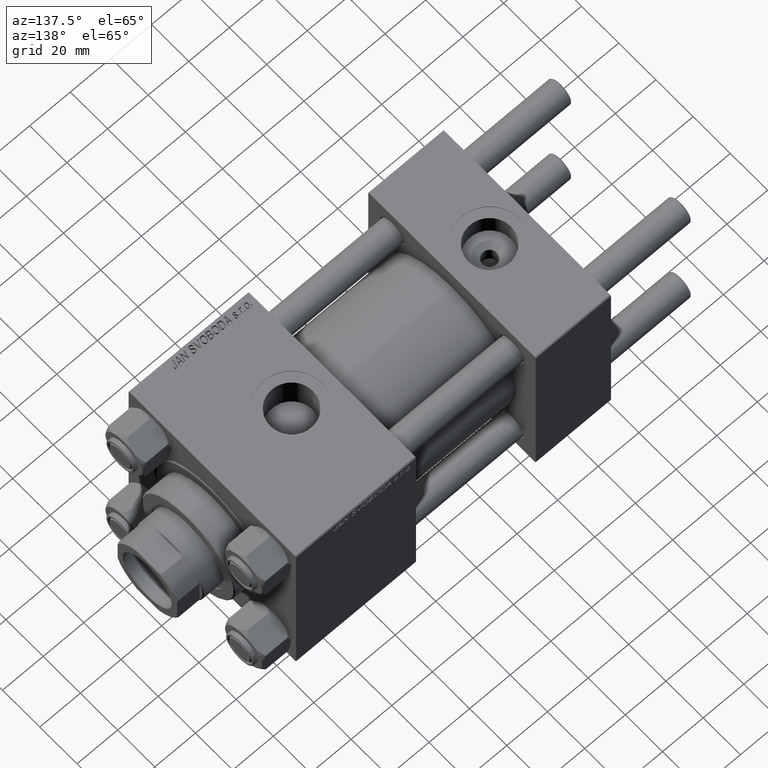
[diagram: clean part render]
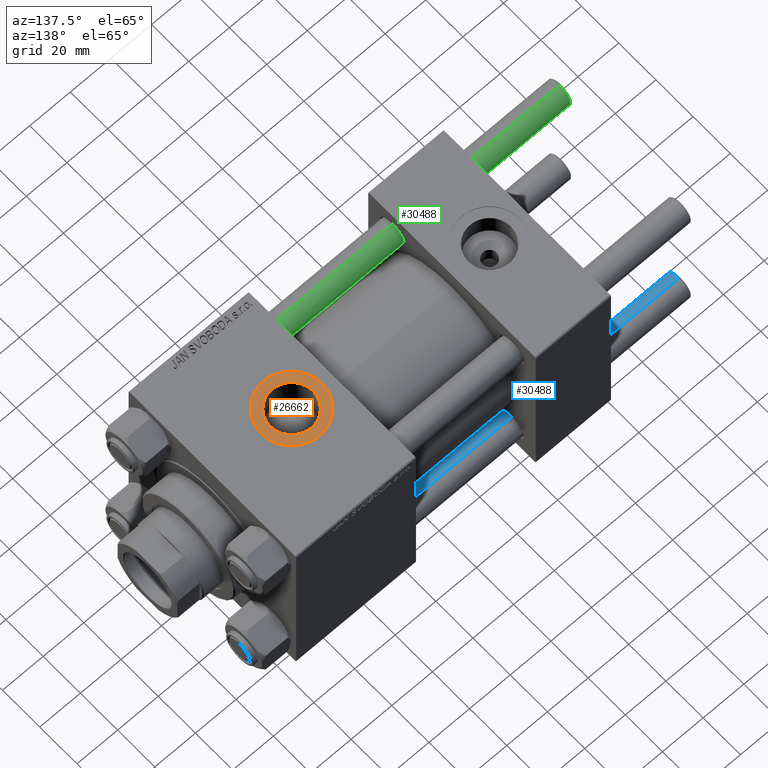
[diagram: same view with three faces highlighted in distinct colors, each labeled with its STEP entity id]
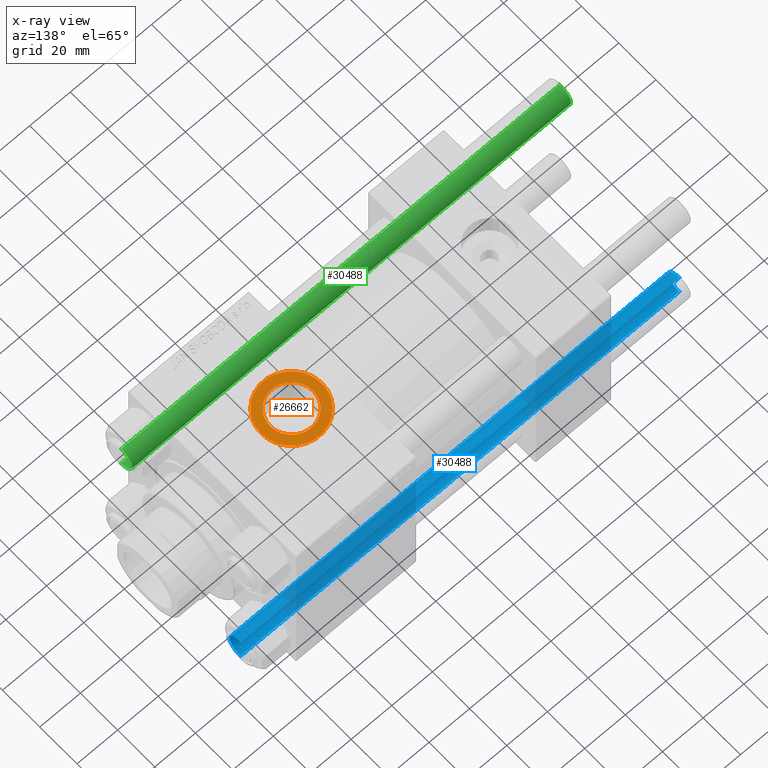
[diagram: x-ray of the same camera — body ghosted, the three highlighted faces saturated]
A machine part, auxiliary view with three faces highlighted in distinct colors.
The next image is the same camera in x-ray (body ghosted, the three faces saturated) — at least one of them is partly hidden behind the body in this view.
Their STEP definitions:

[orange] entity #26662 — the highlighted planar face has unit normal (0, 0, 1).
#470 = ORIENTED_EDGE ( 'NONE', *, *, #3503, .T. ) ;
#982 = CARTESIAN_POINT ( 'NONE',  ( 116.0000000000000000, -6.938893903907227589E-15, 44.79999999999999005 ) ) ;
#1480 = FACE_BOUND ( 'NONE', #33118, .T. ) ;
#1819 = EDGE_CURVE ( 'NONE', #8877, #41171, #37362, .T. ) ;
#2546 = CIRCLE ( 'NONE', #16245, 10.48000000000000398 ) ;
#2659 = VERTEX_POINT ( 'NONE', #12967 ) ;
#2829 = AXIS2_PLACEMENT_3D ( 'NONE', #43189, #43448, #20291 ) ;
#3158 = EDGE_CURVE ( 'NONE', #12294, #2659, #49478, .T. ) ;
#3503 = EDGE_CURVE ( 'NONE', #2659, #12294, #5252, .T. ) ;
#4756 = FACE_OUTER_BOUND ( 'NONE', #25803, .T. ) ;
#5252 = CIRCLE ( 'NONE', #2829, 15.00000000000000000 ) ;
#6132 = CARTESIAN_POINT ( 'NONE',  ( 116.0000000000000000, -6.938893903907227589E-15, 44.79999999999999005 ) ) ;
#7264 = ORIENTED_EDGE ( 'NONE', *, *, #1819, .T. ) ;
#8877 = VERTEX_POINT ( 'NONE', #45394 ) ;
#10871 = AXIS2_PLACEMENT_3D ( 'NONE', #45583, #41069, #14387 ) ;
#11368 = CARTESIAN_POINT ( 'NONE',  ( 105.5199999999999960, -6.938893903907227589E-15, 44.79999999999999005 ) ) ;
#12062 = DIRECTION ( 'NONE',  ( 1.000000000000000000, 0.000000000000000000, -0.000000000000000000 ) ) ;
#12294 = VERTEX_POINT ( 'NONE', #37308 ) ;
#12967 = CARTESIAN_POINT ( 'NONE',  ( 100.9999999999999858, -5.101923705186196422E-15, 44.79999999999999005 ) ) ;
#14387 = DIRECTION ( 'NONE',  ( 1.000000000000000000, 0.000000000000000000, 0.000000000000000000 ) ) ;
#16079 = PLANE ( 'NONE',  #44853 ) ;
#16245 = AXIS2_PLACEMENT_3D ( 'NONE', #42578, #46846, #27203 ) ;
#16833 = DIRECTION ( 'NONE',  ( 0.000000000000000000, 0.000000000000000000, 1.000000000000000000 ) ) ;
#20279 = ORIENTED_EDGE ( 'NONE', *, *, #3158, .T. ) ;
#20291 = DIRECTION ( 'NONE',  ( 1.000000000000000000, 0.000000000000000000, 0.000000000000000000 ) ) ;
#20632 = ORIENTED_EDGE ( 'NONE', *, *, #41315, .T. ) ;
#25803 = EDGE_LOOP ( 'NONE', ( #20279, #470 ) ) ;
#26662 = ADVANCED_FACE ( 'NONE', ( #1480, #4756 ), #16079, .T. ) ;
#27203 = DIRECTION ( 'NONE',  ( 1.000000000000000000, 0.000000000000000000, 0.000000000000000000 ) ) ;
#30908 = AXIS2_PLACEMENT_3D ( 'NONE', #6132, #32310, #47927 ) ;
#32310 = DIRECTION ( 'NONE',  ( -0.000000000000000000, -0.000000000000000000, -1.000000000000000000 ) ) ;
#33118 = EDGE_LOOP ( 'NONE', ( #20632, #7264 ) ) ;
#37308 = CARTESIAN_POINT ( 'NONE',  ( 131.0000000000000000, -6.938893903907227589E-15, 44.79999999999999005 ) ) ;
#37362 = CIRCLE ( 'NONE', #30908, 10.48000000000000398 ) ;
#41069 = DIRECTION ( 'NONE',  ( 0.000000000000000000, 0.000000000000000000, 1.000000000000000000 ) ) ;
#41171 = VERTEX_POINT ( 'NONE', #11368 ) ;
#41315 = EDGE_CURVE ( 'NONE', #41171, #8877, #2546, .T. ) ;
#42578 = CARTESIAN_POINT ( 'NONE',  ( 116.0000000000000000, -6.938893903907227589E-15, 44.79999999999999005 ) ) ;
#43189 = CARTESIAN_POINT ( 'NONE',  ( 116.0000000000000000, -6.938893903907227589E-15, 44.79999999999999005 ) ) ;
#43448 = DIRECTION ( 'NONE',  ( 0.000000000000000000, 0.000000000000000000, 1.000000000000000000 ) ) ;
#44853 = AXIS2_PLACEMENT_3D ( 'NONE', #982, #16833, #12062 ) ;
#45394 = CARTESIAN_POINT ( 'NONE',  ( 126.4800000000000040, -5.655464058400802100E-15, 44.79999999999999005 ) ) ;
#45583 = CARTESIAN_POINT ( 'NONE',  ( 116.0000000000000000, -6.938893903907227589E-15, 44.79999999999999005 ) ) ;
#46846 = DIRECTION ( 'NONE',  ( -0.000000000000000000, -0.000000000000000000, -1.000000000000000000 ) ) ;
#47927 = DIRECTION ( 'NONE',  ( 1.000000000000000000, 0.000000000000000000, 0.000000000000000000 ) ) ;
#49478 = CIRCLE ( 'NONE', #10871, 15.00000000000000000 ) ;

[blue] entity #30488 — the highlighted cylindrical surface (edge-blend (fillet) strip) has radius 6 mm, axis along (1, 0, -0).
#1919 = ORIENTED_EDGE ( 'NONE', *, *, #45602, .T. ) ;
#2464 = DIRECTION ( 'NONE',  ( -0.000000000000000000, -0.000000000000000000, 1.000000000000000000 ) ) ;
#2714 = CARTESIAN_POINT ( 'NONE',  ( -6.000000000000000888, 0.000000000000000000, 0.4999999999999449329 ) ) ;
#3381 = CIRCLE ( 'NONE', #31488, 6.000000000000000888 ) ;
#3660 = ORIENTED_EDGE ( 'NONE', *, *, #43885, .T. ) ;
#10644 = DIRECTION ( 'NONE',  ( -1.000000000000000000, 0.000000000000000000, 0.000000000000000000 ) ) ;
#12758 = DIRECTION ( 'NONE',  ( -0.000000000000000000, -0.000000000000000000, -1.000000000000000000 ) ) ;
#14034 = DIRECTION ( 'NONE',  ( 1.000000000000000000, 0.000000000000000000, 0.000000000000000000 ) ) ;
#15034 = DIRECTION ( 'NONE',  ( -0.000000000000000000, -0.000000000000000000, -1.000000000000000000 ) ) ;
#17020 = CARTESIAN_POINT ( 'NONE',  ( -6.000000000000000888, 0.000000000000000000, 217.0000000000000000 ) ) ;
#18094 = ORIENTED_EDGE ( 'NONE', *, *, #42589, .F. ) ;
#18311 = CARTESIAN_POINT ( 'NONE',  ( 6.000000000000000888, 7.347880794884120722E-16, 217.0000000000000000 ) ) ;
#18837 = EDGE_CURVE ( 'NONE', #41429, #45914, #45048, .T. ) ;
#19251 = CARTESIAN_POINT ( 'NONE',  ( -6.000000000000000888, 0.000000000000000000, 216.4999999999999716 ) ) ;
#22309 = AXIS2_PLACEMENT_3D ( 'NONE', #33528, #29749, #10644 ) ;
#24275 = CARTESIAN_POINT ( 'NONE',  ( 0.000000000000000000, 0.000000000000000000, 216.4999999999999716 ) ) ;
#29749 = DIRECTION ( 'NONE',  ( -0.000000000000000000, -0.000000000000000000, -1.000000000000000000 ) ) ;
#30488 = ADVANCED_FACE ( 'NONE', ( #41588 ), #33277, .T. ) ;
#30657 = VECTOR ( 'NONE', #12758, 1000.000000000000000 ) ;
#31488 = AXIS2_PLACEMENT_3D ( 'NONE', #36943, #2464, #14034 ) ;
#33277 = CYLINDRICAL_SURFACE ( 'NONE', #22309, 6.000000000000000888 ) ;
#33528 = CARTESIAN_POINT ( 'NONE',  ( 0.000000000000000000, 0.000000000000000000, 217.0000000000000000 ) ) ;
#33937 = VECTOR ( 'NONE', #15034, 1000.000000000000000 ) ;
#36943 = CARTESIAN_POINT ( 'NONE',  ( 0.000000000000000000, 0.000000000000000000, 0.4999999999999449329 ) ) ;
#40196 = AXIS2_PLACEMENT_3D ( 'NONE', #24275, #46935, #47917 ) ;
#40771 = CARTESIAN_POINT ( 'NONE',  ( 6.000000000000000888, 7.347880794884120722E-16, 216.4999999999999716 ) ) ;
#41429 = VERTEX_POINT ( 'NONE', #40771 ) ;
#41462 = LINE ( 'NONE', #18311, #33937 ) ;
#41588 = FACE_OUTER_BOUND ( 'NONE', #42829, .T. ) ;
#42589 = EDGE_CURVE ( 'NONE', #41429, #45285, #41462, .T. ) ;
#42829 = EDGE_LOOP ( 'NONE', ( #18094, #47895, #3660, #1919 ) ) ;
#43885 = EDGE_CURVE ( 'NONE', #45914, #45530, #48225, .T. ) ;
#45048 = CIRCLE ( 'NONE', #40196, 6.000000000000000888 ) ;
#45285 = VERTEX_POINT ( 'NONE', #46382 ) ;
#45530 = VERTEX_POINT ( 'NONE', #2714 ) ;
#45602 = EDGE_CURVE ( 'NONE', #45530, #45285, #3381, .T. ) ;
#45914 = VERTEX_POINT ( 'NONE', #19251 ) ;
#46382 = CARTESIAN_POINT ( 'NONE',  ( 6.000000000000000888, 7.347880794884120722E-16, 0.4999999999999449329 ) ) ;
#46935 = DIRECTION ( 'NONE',  ( 0.000000000000000000, 0.000000000000000000, -1.000000000000000000 ) ) ;
#47895 = ORIENTED_EDGE ( 'NONE', *, *, #18837, .T. ) ;
#47917 = DIRECTION ( 'NONE',  ( 1.000000000000000000, 0.000000000000000000, 0.000000000000000000 ) ) ;
#48225 = LINE ( 'NONE', #17020, #30657 ) ;

[green] entity #30488 — the highlighted cylindrical surface (edge-blend (fillet) strip) has radius 6 mm, axis along (1, -0, 0).
#1919 = ORIENTED_EDGE ( 'NONE', *, *, #45602, .T. ) ;
#2464 = DIRECTION ( 'NONE',  ( -0.000000000000000000, -0.000000000000000000, 1.000000000000000000 ) ) ;
#2714 = CARTESIAN_POINT ( 'NONE',  ( -6.000000000000000888, 0.000000000000000000, 0.4999999999999449329 ) ) ;
#3381 = CIRCLE ( 'NONE', #31488, 6.000000000000000888 ) ;
#3660 = ORIENTED_EDGE ( 'NONE', *, *, #43885, .T. ) ;
#10644 = DIRECTION ( 'NONE',  ( -1.000000000000000000, 0.000000000000000000, 0.000000000000000000 ) ) ;
#12758 = DIRECTION ( 'NONE',  ( -0.000000000000000000, -0.000000000000000000, -1.000000000000000000 ) ) ;
#14034 = DIRECTION ( 'NONE',  ( 1.000000000000000000, 0.000000000000000000, 0.000000000000000000 ) ) ;
#15034 = DIRECTION ( 'NONE',  ( -0.000000000000000000, -0.000000000000000000, -1.000000000000000000 ) ) ;
#17020 = CARTESIAN_POINT ( 'NONE',  ( -6.000000000000000888, 0.000000000000000000, 217.0000000000000000 ) ) ;
#18094 = ORIENTED_EDGE ( 'NONE', *, *, #42589, .F. ) ;
#18311 = CARTESIAN_POINT ( 'NONE',  ( 6.000000000000000888, 7.347880794884120722E-16, 217.0000000000000000 ) ) ;
#18837 = EDGE_CURVE ( 'NONE', #41429, #45914, #45048, .T. ) ;
#19251 = CARTESIAN_POINT ( 'NONE',  ( -6.000000000000000888, 0.000000000000000000, 216.4999999999999716 ) ) ;
#22309 = AXIS2_PLACEMENT_3D ( 'NONE', #33528, #29749, #10644 ) ;
#24275 = CARTESIAN_POINT ( 'NONE',  ( 0.000000000000000000, 0.000000000000000000, 216.4999999999999716 ) ) ;
#29749 = DIRECTION ( 'NONE',  ( -0.000000000000000000, -0.000000000000000000, -1.000000000000000000 ) ) ;
#30488 = ADVANCED_FACE ( 'NONE', ( #41588 ), #33277, .T. ) ;
#30657 = VECTOR ( 'NONE', #12758, 1000.000000000000000 ) ;
#31488 = AXIS2_PLACEMENT_3D ( 'NONE', #36943, #2464, #14034 ) ;
#33277 = CYLINDRICAL_SURFACE ( 'NONE', #22309, 6.000000000000000888 ) ;
#33528 = CARTESIAN_POINT ( 'NONE',  ( 0.000000000000000000, 0.000000000000000000, 217.0000000000000000 ) ) ;
#33937 = VECTOR ( 'NONE', #15034, 1000.000000000000000 ) ;
#36943 = CARTESIAN_POINT ( 'NONE',  ( 0.000000000000000000, 0.000000000000000000, 0.4999999999999449329 ) ) ;
#40196 = AXIS2_PLACEMENT_3D ( 'NONE', #24275, #46935, #47917 ) ;
#40771 = CARTESIAN_POINT ( 'NONE',  ( 6.000000000000000888, 7.347880794884120722E-16, 216.4999999999999716 ) ) ;
#41429 = VERTEX_POINT ( 'NONE', #40771 ) ;
#41462 = LINE ( 'NONE', #18311, #33937 ) ;
#41588 = FACE_OUTER_BOUND ( 'NONE', #42829, .T. ) ;
#42589 = EDGE_CURVE ( 'NONE', #41429, #45285, #41462, .T. ) ;
#42829 = EDGE_LOOP ( 'NONE', ( #18094, #47895, #3660, #1919 ) ) ;
#43885 = EDGE_CURVE ( 'NONE', #45914, #45530, #48225, .T. ) ;
#45048 = CIRCLE ( 'NONE', #40196, 6.000000000000000888 ) ;
#45285 = VERTEX_POINT ( 'NONE', #46382 ) ;
#45530 = VERTEX_POINT ( 'NONE', #2714 ) ;
#45602 = EDGE_CURVE ( 'NONE', #45530, #45285, #3381, .T. ) ;
#45914 = VERTEX_POINT ( 'NONE', #19251 ) ;
#46382 = CARTESIAN_POINT ( 'NONE',  ( 6.000000000000000888, 7.347880794884120722E-16, 0.4999999999999449329 ) ) ;
#46935 = DIRECTION ( 'NONE',  ( 0.000000000000000000, 0.000000000000000000, -1.000000000000000000 ) ) ;
#47895 = ORIENTED_EDGE ( 'NONE', *, *, #18837, .T. ) ;
#47917 = DIRECTION ( 'NONE',  ( 1.000000000000000000, 0.000000000000000000, 0.000000000000000000 ) ) ;
#48225 = LINE ( 'NONE', #17020, #30657 ) ;